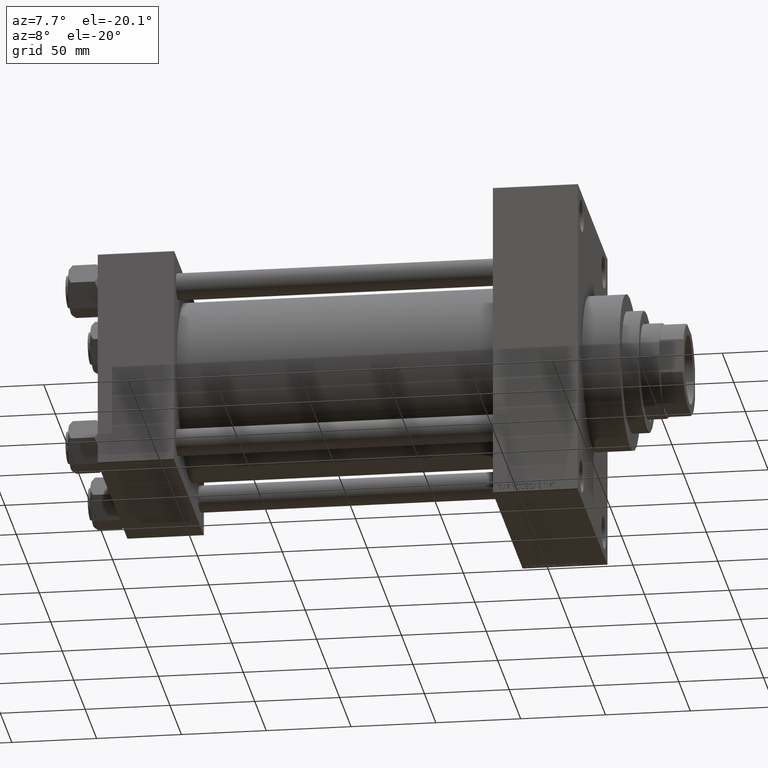
[diagram: clean part render]
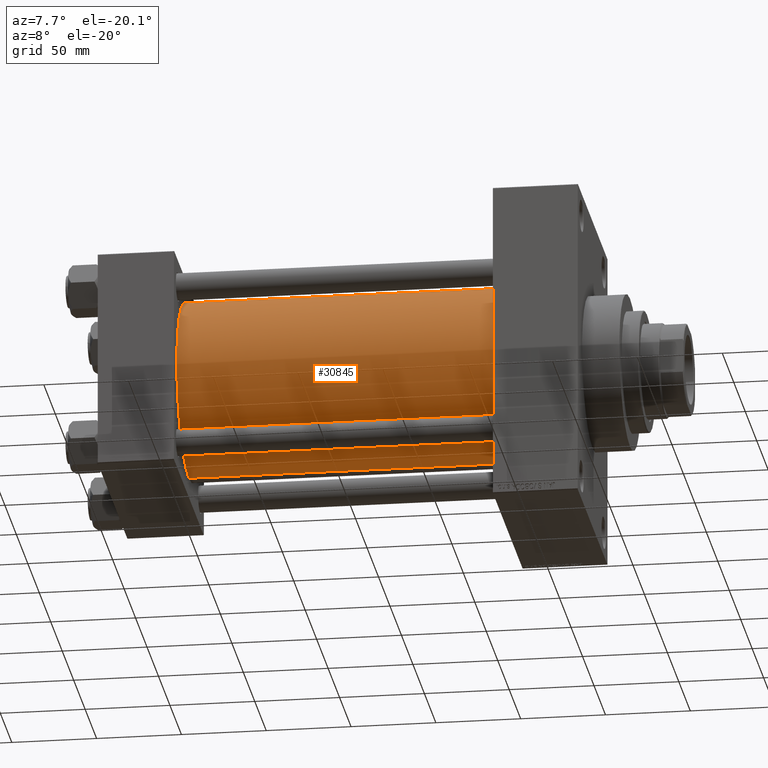
[diagram: same view with one face highlighted and labeled with its STEP entity id]
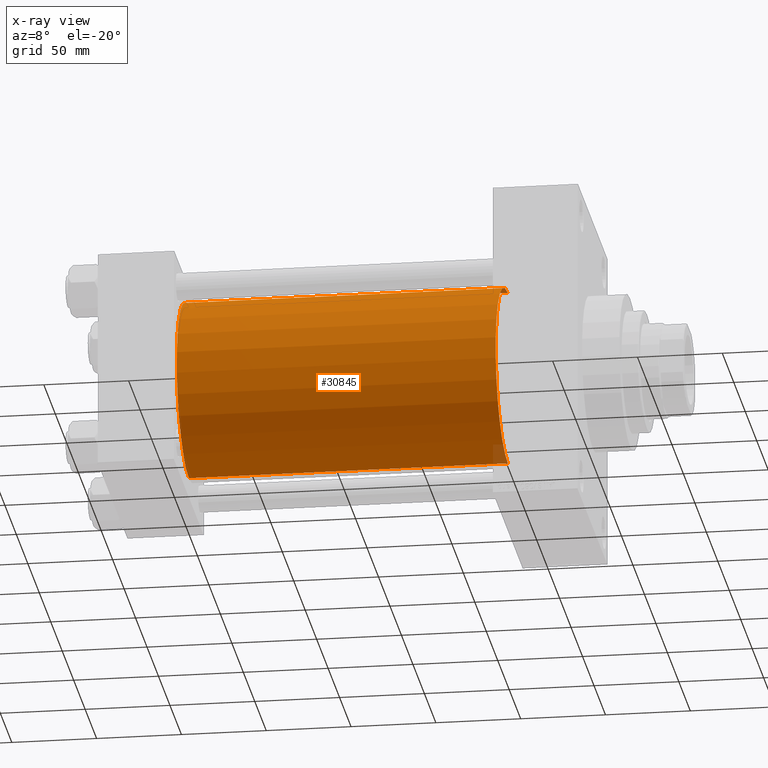
[diagram: x-ray of the same camera — body ghosted, the highlighted face saturated]
A machine part, auxiliary view. The second image highlights one B-rep face of the part: STEP entity #30845.
The next image is the same camera in x-ray: the body ghosted, the highlighted face saturated — about 0% of this face is hidden behind the body in this view.
In plain terms, the highlighted cylindrical surface (partial cylindrical patch) has radius 53 mm, axis along (-1, -0, -0).
Its self-contained STEP definition (entity closure, byte-faithful):
#2416 = CARTESIAN_POINT ( 'NONE',  ( 232.9999999999999716, 3.888542821515762466E-15, -53.00000000000000711 ) ) ;
#2920 = ORIENTED_EDGE ( 'NONE', *, *, #4282, .F. ) ;
#3254 = AXIS2_PLACEMENT_3D ( 'NONE', #10604, #25311, #13988 ) ;
#3604 = LINE ( 'NONE', #18558, #27928 ) ;
#3788 = CYLINDRICAL_SURFACE ( 'NONE', #24236, 53.00000000000000711 ) ;
#4282 = EDGE_CURVE ( 'NONE', #11296, #32975, #32785, .T. ) ;
#6153 = VERTEX_POINT ( 'NONE', #47549 ) ;
#6501 = DIRECTION ( 'NONE',  ( -1.000000000000000000, -0.000000000000000000, -0.000000000000000000 ) ) ;
#8793 = DIRECTION ( 'NONE',  ( 1.000000000000000000, -0.000000000000000000, 0.000000000000000000 ) ) ;
#10604 = CARTESIAN_POINT ( 'NONE',  ( 232.9999999999999716, -2.602085213965210642E-15, 0.000000000000000000 ) ) ;
#11296 = VERTEX_POINT ( 'NONE', #11846 ) ;
#11846 = CARTESIAN_POINT ( 'NONE',  ( 232.9999999999999716, 3.888542821515762466E-15, -53.00000000000000711 ) ) ;
#12344 = EDGE_LOOP ( 'NONE', ( #2920, #37408, #30700, #13544 ) ) ;
#13544 = ORIENTED_EDGE ( 'NONE', *, *, #20064, .T. ) ;
#13988 = DIRECTION ( 'NONE',  ( 0.000000000000000000, 0.000000000000000000, -1.000000000000000000 ) ) ;
#15430 = DIRECTION ( 'NONE',  ( -1.000000000000000000, -0.000000000000000000, -0.000000000000000000 ) ) ;
#17894 = CIRCLE ( 'NONE', #3254, 53.00000000000000711 ) ;
#18558 = CARTESIAN_POINT ( 'NONE',  ( 232.9999999999999716, -2.602085213965210642E-15, 53.00000000000000711 ) ) ;
#20064 = EDGE_CURVE ( 'NONE', #6153, #32975, #27801, .T. ) ;
#23356 = EDGE_CURVE ( 'NONE', #30117, #11296, #17894, .T. ) ;
#23385 = EDGE_CURVE ( 'NONE', #30117, #6153, #3604, .T. ) ;
#24236 = AXIS2_PLACEMENT_3D ( 'NONE', #40741, #34443, #42419 ) ;
#25311 = DIRECTION ( 'NONE',  ( 1.000000000000000000, 0.000000000000000000, 0.000000000000000000 ) ) ;
#27801 = CIRCLE ( 'NONE', #37842, 53.00000000000000711 ) ;
#27928 = VECTOR ( 'NONE', #15430, 1000.000000000000000 ) ;
#30117 = VERTEX_POINT ( 'NONE', #31674 ) ;
#30700 = ORIENTED_EDGE ( 'NONE', *, *, #23385, .T. ) ;
#30845 = ADVANCED_FACE ( 'NONE', ( #36853 ), #3788, .T. ) ;
#31674 = CARTESIAN_POINT ( 'NONE',  ( 232.9999999999999716, -2.602085213965210642E-15, 53.00000000000000711 ) ) ;
#32785 = LINE ( 'NONE', #2416, #42715 ) ;
#32975 = VERTEX_POINT ( 'NONE', #46762 ) ;
#34443 = DIRECTION ( 'NONE',  ( -1.000000000000000000, -0.000000000000000000, -0.000000000000000000 ) ) ;
#34617 = DIRECTION ( 'NONE',  ( 0.000000000000000000, 0.000000000000000000, 1.000000000000000000 ) ) ;
#36853 = FACE_OUTER_BOUND ( 'NONE', #12344, .T. ) ;
#37408 = ORIENTED_EDGE ( 'NONE', *, *, #23356, .F. ) ;
#37842 = AXIS2_PLACEMENT_3D ( 'NONE', #41883, #8793, #34617 ) ;
#40741 = CARTESIAN_POINT ( 'NONE',  ( 232.9999999999999716, -2.602085213965210642E-15, 0.000000000000000000 ) ) ;
#41883 = CARTESIAN_POINT ( 'NONE',  ( 44.99999999999998579, -2.602085213965210642E-15, 0.000000000000000000 ) ) ;
#42419 = DIRECTION ( 'NONE',  ( 0.000000000000000000, 0.000000000000000000, 1.000000000000000000 ) ) ;
#42715 = VECTOR ( 'NONE', #6501, 1000.000000000000000 ) ;
#46762 = CARTESIAN_POINT ( 'NONE',  ( 44.99999999999998579, 3.888542821515762466E-15, -53.00000000000000711 ) ) ;
#47549 = CARTESIAN_POINT ( 'NONE',  ( 44.99999999999998579, -2.602085213965210642E-15, 53.00000000000000711 ) ) ;